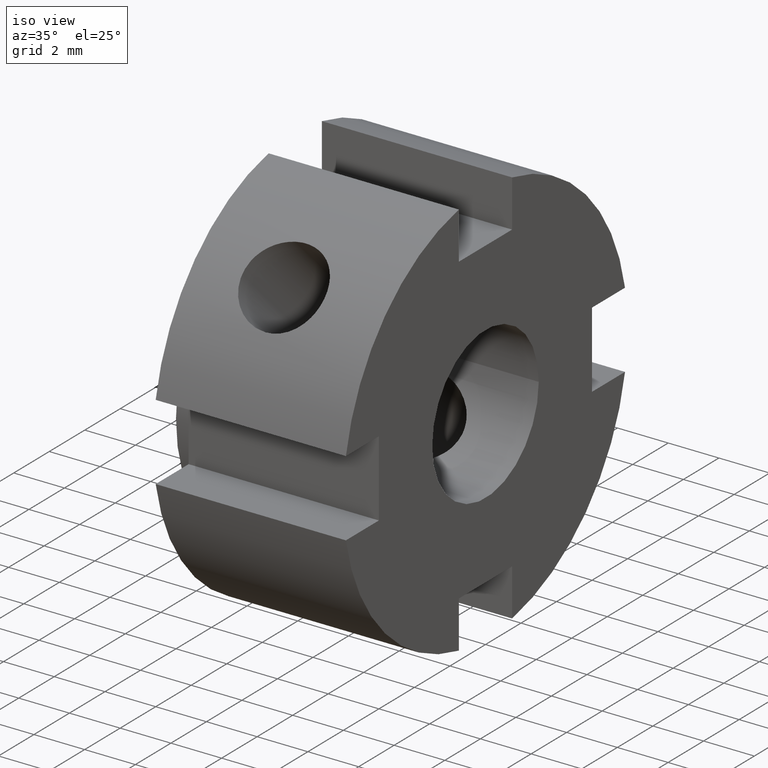
[diagram: clean part render]
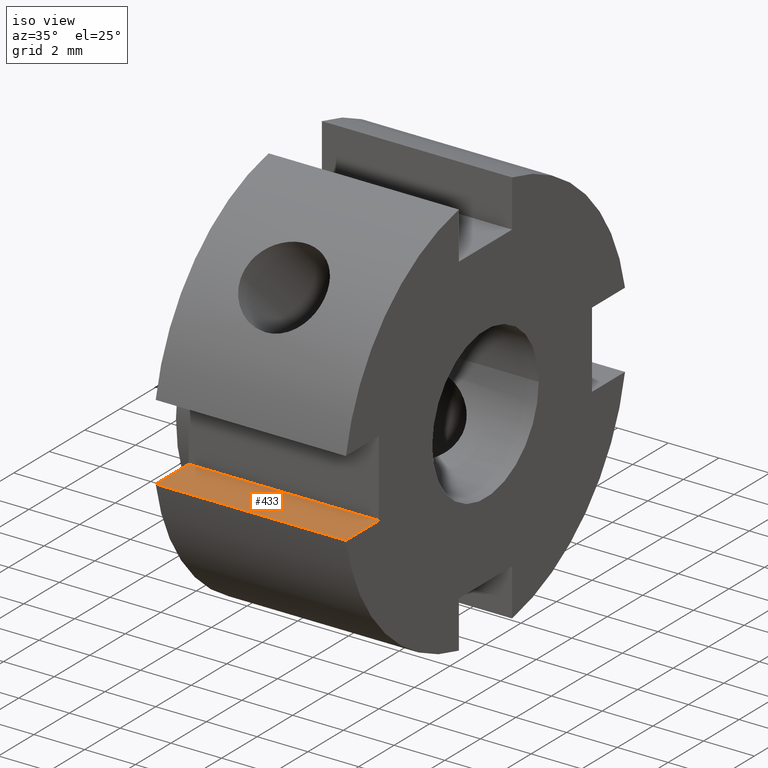
[diagram: same view with one face highlighted and labeled with its STEP entity id]
A machine part, iso view. The second image highlights one B-rep face of the part: STEP entity #433.
In plain terms, the highlighted planar face has unit normal (0, 0, -1).
Its self-contained STEP definition (entity closure, byte-faithful):
#394=CARTESIAN_POINT('',(7.999999999999998,-7.999999999999997,-1.499999999999999));
#395=DIRECTION('',(0.0,0.0,-1.0));
#396=DIRECTION('',(1.0,0.0,0.0));
#397=AXIS2_PLACEMENT_3D('',#394,#395,#396);
#398=PLANE('',#397);
#399=CARTESIAN_POINT('',(0.499999999999998,-7.858116822750851,-1.499999999999999));
#400=VERTEX_POINT('',#399);
#401=CARTESIAN_POINT('',(0.500000000000000,-5.999999999999996,-1.500000000000000));
#402=VERTEX_POINT('',#401);
#403=CARTESIAN_POINT('',(0.500000000000000,-7.858116822750851,-1.499999999999999));
#404=DIRECTION('',(0.0,1.0,0.0));
#405=VECTOR('',#404,1.858116822750855);
#406=LINE('',#403,#405);
#407=EDGE_CURVE('',#400,#402,#406,.T.);
#408=ORIENTED_EDGE('',*,*,#407,.F.);
#409=CARTESIAN_POINT('',(7.999999999999998,-7.858116822750851,-1.499999999999999));
#410=VERTEX_POINT('',#409);
#411=CARTESIAN_POINT('',(7.999999999999998,-7.858116822750851,-1.499999999999999));
#412=DIRECTION('',(-1.0,0.0,0.0));
#413=VECTOR('',#412,7.500000000000000);
#414=LINE('',#411,#413);
#415=EDGE_CURVE('',#410,#400,#414,.T.);
#416=ORIENTED_EDGE('',*,*,#415,.F.);
#417=CARTESIAN_POINT('',(7.999999999999998,-5.999999999999996,-1.500000000000000));
#418=VERTEX_POINT('',#417);
#419=CARTESIAN_POINT('',(7.999999999999998,-5.999999999999996,-1.500000000000000));
#420=DIRECTION('',(0.0,-1.0,0.0));
#421=VECTOR('',#420,1.858116822750855);
#422=LINE('',#419,#421);
#423=EDGE_CURVE('',#418,#410,#422,.T.);
#424=ORIENTED_EDGE('',*,*,#423,.F.);
#425=CARTESIAN_POINT('',(7.999999999999998,-5.999999999999996,-1.500000000000000));
#426=DIRECTION('',(-1.0,0.0,0.0));
#427=VECTOR('',#426,7.499999999999998);
#428=LINE('',#425,#427);
#429=EDGE_CURVE('',#418,#402,#428,.T.);
#430=ORIENTED_EDGE('',*,*,#429,.T.);
#431=EDGE_LOOP('',(#408,#416,#424,#430));
#432=FACE_OUTER_BOUND('',#431,.T.);
#433=ADVANCED_FACE('',(#432),#398,.F.);